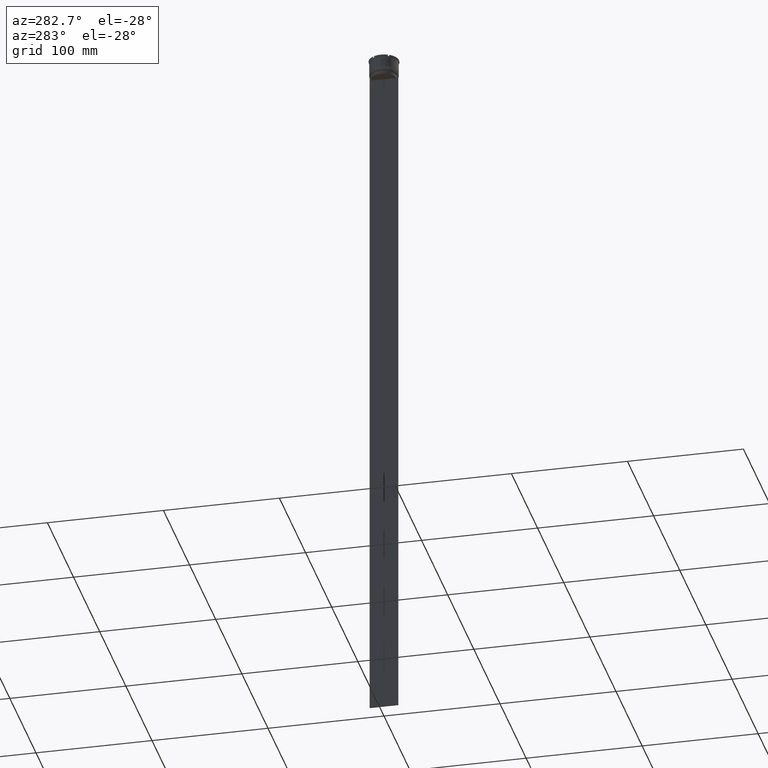
[diagram: clean part render]
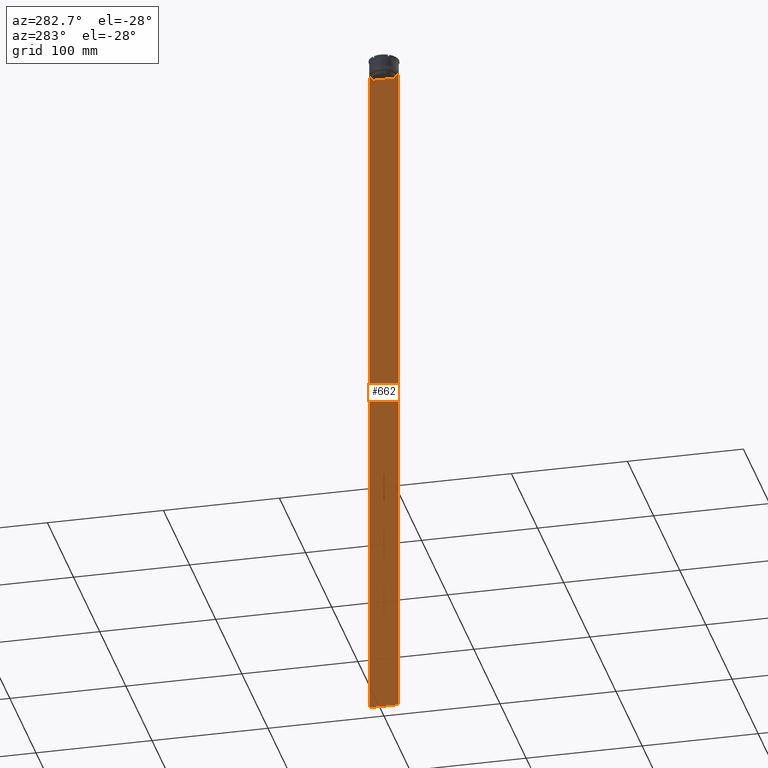
[diagram: same view with one face highlighted and labeled with its STEP entity id]
A machine part, auxiliary view. The second image highlights one B-rep face of the part: STEP entity #662.
In plain terms, the highlighted planar face has unit normal (-1, 0, 0).
Its self-contained STEP definition (entity closure, byte-faithful):
#25 = EDGE_CURVE ( 'NONE', #819, #2107, #1042, .T. ) ;
#42 = VECTOR ( 'NONE', #73, 1000.000000000000000 ) ;
#73 = DIRECTION ( 'NONE',  ( 0.000000000000000000, -1.000000000000000000, 0.000000000000000000 ) ) ;
#111 = VERTEX_POINT ( 'NONE', #284 ) ;
#215 = CARTESIAN_POINT ( 'NONE',  ( -0.4999999999999997780, 12.24999999999999289, 10.52039967047845792 ) ) ;
#248 = CARTESIAN_POINT ( 'NONE',  ( -0.4999999999999997780, -12.25000000000000711, -14.00000000000000178 ) ) ;
#258 = CARTESIAN_POINT ( 'NONE',  ( -0.4999999999999997780, 10.90000000000000213, -17.00000000000000000 ) ) ;
#284 = CARTESIAN_POINT ( 'NONE',  ( -0.4999999999999997780, -10.88852607105296144, -17.00000000000000000 ) ) ;
#304 = CARTESIAN_POINT ( 'NONE',  ( -0.4999999999999997780, -10.88852607105296322, 0.000000000000000000 ) ) ;
#306 = EDGE_CURVE ( 'NONE', #732, #2393, #1497, .T. ) ;
#355 = CARTESIAN_POINT ( 'NONE',  ( -0.4999999999999997780, 12.24999999999999289, -614.0000000000000000 ) ) ;
#410 = VECTOR ( 'NONE', #569, 1000.000000000000000 ) ;
#415 = ORIENTED_EDGE ( 'NONE', *, *, #306, .F. ) ;
#476 = CARTESIAN_POINT ( 'NONE',  ( -0.4999999999999997780, -10.88852607105296322, -14.50000000000000000 ) ) ;
#519 = CARTESIAN_POINT ( 'NONE',  ( -0.4999999999999997780, -12.25000000000000711, 10.52039967047845792 ) ) ;
#544 = CARTESIAN_POINT ( 'NONE',  ( -0.4999999999999997780, -10.88852607105296322, -14.50000000000000000 ) ) ;
#561 = DIRECTION ( 'NONE',  ( -1.000000000000000000, 0.000000000000000000, 0.000000000000000000 ) ) ;
#569 = DIRECTION ( 'NONE',  ( 0.000000000000000000, 0.000000000000000000, -1.000000000000000000 ) ) ;
#576 = VECTOR ( 'NONE', #834, 1000.000000000000000 ) ;
#611 = ORIENTED_EDGE ( 'NONE', *, *, #1642, .F. ) ;
#625 = B_SPLINE_CURVE_WITH_KNOTS ( 'NONE', 3,
 ( #544, #1408, #2276, #1190 ),
 .UNSPECIFIED., .F., .F.,
 ( 4, 4 ),
 ( 0.05041323384703224469, 0.05112713601261603680 ),
 .UNSPECIFIED. ) ;
#646 = VERTEX_POINT ( 'NONE', #2027 ) ;
#662 = ADVANCED_FACE ( 'NONE', ( #2500 ), #740, .T. ) ;
#716 = ORIENTED_EDGE ( 'NONE', *, *, #890, .F. ) ;
#732 = VERTEX_POINT ( 'NONE', #2565 ) ;
#740 = PLANE ( 'NONE',  #2118 ) ;
#788 = EDGE_CURVE ( 'NONE', #2107, #2175, #1964, .T. ) ;
#789 = LINE ( 'NONE', #1645, #410 ) ;
#814 = CARTESIAN_POINT ( 'NONE',  ( -0.4999999999999997780, 10.88852607105296322, 0.000000000000000000 ) ) ;
#819 = VERTEX_POINT ( 'NONE', #2335 ) ;
#834 = DIRECTION ( 'NONE',  ( 0.000000000000000000, -1.000000000000000000, 0.000000000000000000 ) ) ;
#869 = ORIENTED_EDGE ( 'NONE', *, *, #25, .F. ) ;
#885 = ORIENTED_EDGE ( 'NONE', *, *, #2058, .F. ) ;
#889 = CARTESIAN_POINT ( 'NONE',  ( -0.4999999999999997780, 10.88852607105296322, -14.50000000000000000 ) ) ;
#890 = EDGE_CURVE ( 'NONE', #111, #2131, #1532, .T. ) ;
#931 = ORIENTED_EDGE ( 'NONE', *, *, #2648, .T. ) ;
#943 = EDGE_CURVE ( 'NONE', #1419, #646, #1590, .T. ) ;
#949 = CARTESIAN_POINT ( 'NONE',  ( -0.4999999999999997780, -11.38902980942626719, -14.00000000000000178 ) ) ;
#1042 = LINE ( 'NONE', #1913, #576 ) ;
#1073 = DIRECTION ( 'NONE',  ( 0.000000000000000000, 0.000000000000000000, -1.000000000000000000 ) ) ;
#1104 = CARTESIAN_POINT ( 'NONE',  ( -0.4999999999999997780, 10.88852607105296144, -17.00000000000000000 ) ) ;
#1131 = LINE ( 'NONE', #258, #2672 ) ;
#1190 = CARTESIAN_POINT ( 'NONE',  ( -0.4999999999999997780, -11.38902980942626719, -14.00000000000000178 ) ) ;
#1256 = EDGE_CURVE ( 'NONE', #1337, #111, #1131, .T. ) ;
#1279 = ORIENTED_EDGE ( 'NONE', *, *, #2380, .F. ) ;
#1281 = CARTESIAN_POINT ( 'NONE',  ( -0.4999999999999997780, -12.25000000000000711, -614.0000000000000000 ) ) ;
#1287 = CARTESIAN_POINT ( 'NONE',  ( -0.4999999999999997780, 11.38902980942626719, -14.00000000000000178 ) ) ;
#1288 = LINE ( 'NONE', #215, #2091 ) ;
#1337 = VERTEX_POINT ( 'NONE', #1104 ) ;
#1339 = CARTESIAN_POINT ( 'NONE',  ( -0.4999999999999997780, 11.38902980942626719, -14.00000000000000178 ) ) ;
#1408 = CARTESIAN_POINT ( 'NONE',  ( -0.4999999999999997780, -11.05536450423839057, -14.33333718996393280 ) ) ;
#1419 = VERTEX_POINT ( 'NONE', #949 ) ;
#1466 = DIRECTION ( 'NONE',  ( 0.000000000000000000, 1.000000000000000000, 0.000000000000000000 ) ) ;
#1467 = DIRECTION ( 'NONE',  ( 0.000000000000000000, 0.000000000000000000, -1.000000000000000000 ) ) ;
#1497 = LINE ( 'NONE', #1281, #1761 ) ;
#1518 = CARTESIAN_POINT ( 'NONE',  ( -0.4999999999999997780, 11.22219891375843304, -14.16667035472756808 ) ) ;
#1529 = DIRECTION ( 'NONE',  ( 0.000000000000000000, -1.000000000000000000, 0.000000000000000000 ) ) ;
#1532 = LINE ( 'NONE', #304, #2398 ) ;
#1590 = LINE ( 'NONE', #248, #42 ) ;
#1607 = DIRECTION ( 'NONE',  ( 0.000000000000000000, 0.000000000000000000, 1.000000000000000000 ) ) ;
#1642 = EDGE_CURVE ( 'NONE', #2175, #1337, #1893, .T. ) ;
#1645 = CARTESIAN_POINT ( 'NONE',  ( -0.4999999999999997780, -12.25000000000000711, 10.52039967047845792 ) ) ;
#1761 = VECTOR ( 'NONE', #1466, 1000.000000000000000 ) ;
#1863 = VECTOR ( 'NONE', #1467, 1000.000000000000000 ) ;
#1893 = LINE ( 'NONE', #814, #1863 ) ;
#1913 = CARTESIAN_POINT ( 'NONE',  ( -0.4999999999999997780, -12.25000000000000711, -14.00000000000000178 ) ) ;
#1964 = B_SPLINE_CURVE_WITH_KNOTS ( 'NONE', 3,
 ( #1287, #1518, #2381, #2155 ),
 .UNSPECIFIED., .F., .F.,
 ( 4, 4 ),
 ( 0.01935560801904634073, 0.02006307108468586772 ),
 .UNSPECIFIED. ) ;
#2027 = CARTESIAN_POINT ( 'NONE',  ( -0.4999999999999997780, -12.25000000000000711, -14.00000000000000178 ) ) ;
#2034 = DIRECTION ( 'NONE',  ( -0.000000000000000000, -0.000000000000000000, 1.000000000000000000 ) ) ;
#2058 = EDGE_CURVE ( 'NONE', #646, #732, #789, .T. ) ;
#2091 = VECTOR ( 'NONE', #1073, 1000.000000000000000 ) ;
#2107 = VERTEX_POINT ( 'NONE', #1339 ) ;
#2118 = AXIS2_PLACEMENT_3D ( 'NONE', #519, #561, #1607 ) ;
#2131 = VERTEX_POINT ( 'NONE', #476 ) ;
#2155 = CARTESIAN_POINT ( 'NONE',  ( -0.4999999999999997780, 10.88852607105296322, -14.50000000000000000 ) ) ;
#2165 = ORIENTED_EDGE ( 'NONE', *, *, #788, .F. ) ;
#2175 = VERTEX_POINT ( 'NONE', #889 ) ;
#2276 = CARTESIAN_POINT ( 'NONE',  ( -0.4999999999999997780, -11.22219891450652973, -14.16667035398018903 ) ) ;
#2335 = CARTESIAN_POINT ( 'NONE',  ( -0.4999999999999997780, 12.24999999999999289, -14.00000000000000178 ) ) ;
#2380 = EDGE_CURVE ( 'NONE', #2131, #1419, #625, .T. ) ;
#2381 = CARTESIAN_POINT ( 'NONE',  ( -0.4999999999999997780, 11.05536450345590538, -14.33333719074559376 ) ) ;
#2393 = VERTEX_POINT ( 'NONE', #355 ) ;
#2398 = VECTOR ( 'NONE', #2034, 1000.000000000000000 ) ;
#2467 = ORIENTED_EDGE ( 'NONE', *, *, #943, .F. ) ;
#2500 = FACE_OUTER_BOUND ( 'NONE', #2770, .T. ) ;
#2565 = CARTESIAN_POINT ( 'NONE',  ( -0.4999999999999997780, -12.25000000000000711, -614.0000000000000000 ) ) ;
#2579 = ORIENTED_EDGE ( 'NONE', *, *, #1256, .F. ) ;
#2648 = EDGE_CURVE ( 'NONE', #819, #2393, #1288, .T. ) ;
#2672 = VECTOR ( 'NONE', #1529, 1000.000000000000000 ) ;
#2770 = EDGE_LOOP ( 'NONE', ( #2165, #869, #931, #415, #885, #2467, #1279, #716, #2579, #611 ) ) ;